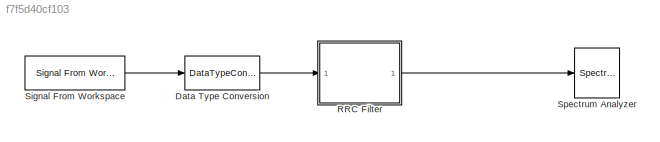
MODEL slx_f7f5d40cf103
KIND model
CONFIG AbsTol = auto
CONFIG EnableMultiTasking = off
CONFIG FixedStep = auto
CONFIG MaxStep = auto
CONFIG MinStep = auto
CONFIG RelTol = 1e-3
CONFIG SampleTimeConstraint = Unconstrained
CONFIG SolverName = VariableStepAuto
CONFIG StartTime = 0.0
CONFIG StopTime = 10.0
BLOCK [DataTypeConversion] Data Type Conversion
  OutDataTypeStr = int8
  RndMeth = Floor
  SaturateOnIntegerOverflow = off
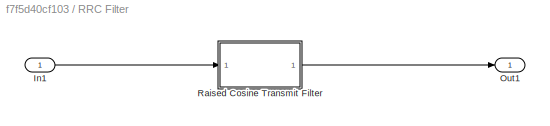
BLOCK [SubSystem] RRC Filter
BLOCK [Inport] RRC Filter/In1
  OutDataTypeStr = int8
  PortDimensions = 1
  SampleTime = 1
BLOCK [Outport] RRC Filter/Out1
  OutDataTypeStr = fixdt(1,32,30)
  SampleTime = 0.125
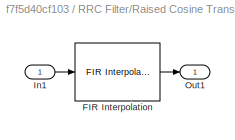
BLOCK [SubSystem] RRC Filter/Raised Cosine Transmit Filter
BLOCK [Reference] RRC Filter/Raised Cosine Transmit Filter/FIR Interpolation  REF=dspmlti4/FIR
Interpolation
  LibrarySourceBlock = commhdlfilt/Raised Cosine\nTransmit Filter/FIR\nInterpolation
  SourceBlock = dspmlti4/FIR\nInterpolation
  SourceType = FIR Interpolation
  UserDataPersistent = on
BLOCK [Inport] RRC Filter/Raised Cosine Transmit Filter/In1
  OutDataTypeStr = int8
  SampleTime = 1
BLOCK [Outport] RRC Filter/Raised Cosine Transmit Filter/Out1
  SampleTime = 0.125
BLOCK [Reference] Signal From Workspace  REF=dspsrcs4/Signal From
Workspace
  SourceBlock = dspsrcs4/Signal From\nWorkspace
  SourceType = Signal From Workspace
BLOCK [SpectrumAnalyzer] Spectrum Analyzer
  GraphicalSettings = {"GraphicalSettings":{"Style":{"BackgroundColor":[0.12941176470588237,0.12941176470588237,0.12941176470588237],"AxesColor":[0.07058823529411765,0.07058823529411765,0.07058823529411765],"LabelsColor":[0.8509803921568627,0.8509803921568627,0.8509803921568627],"PreserveColors":false,"Visible":[true],"LineStyle":["-"],"LineColor":[[1,1,0.06666666666666667]],"LineWidth":[1.5],"Marker":["none"],"FontSiz...<+929ch>
  OpenAtSimulationStart = off
  ScopeFrameLocation = window
  Visible = on
  WasSavedAsWebScope = on
  WindowPosition = [560.000000,290.000000,800.000000,500.000000,]
  YLimits = [-1,1]
LINE Data Type Conversion:1 -> RRC Filter:1
LINE RRC Filter/In1:1 -> RRC Filter/Raised Cosine Transmit Filter:1
LINE RRC Filter/Raised Cosine Transmit Filter:1 -> RRC Filter/Out1:1
LINE RRC Filter:1 -> Spectrum Analyzer:1
LINE Signal From Workspace:1 -> Data Type Conversion:1
